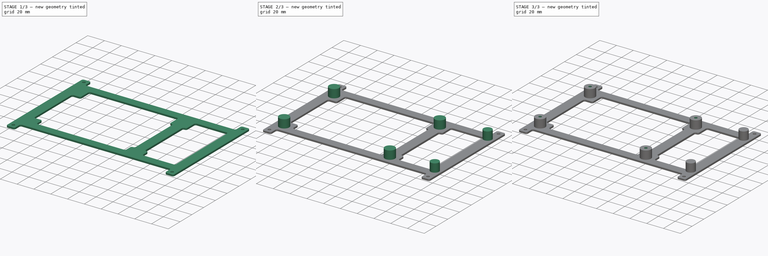
[diagram: build sequence overview — one tinted view per stage of 3, left to right]
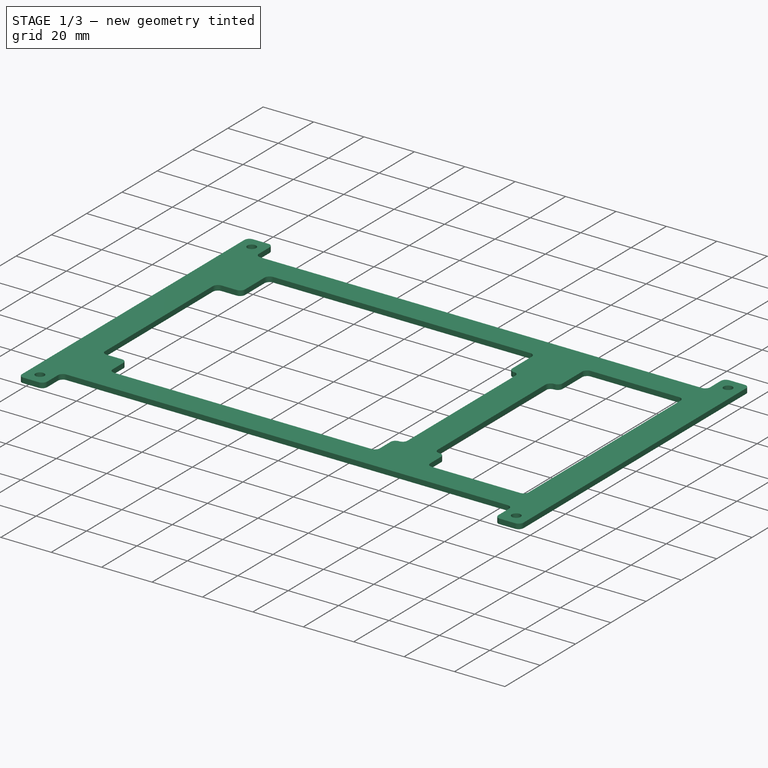
[diagram: stage 1 of 3 — iso view after this stage's code; geometry added in this stage tinted green]
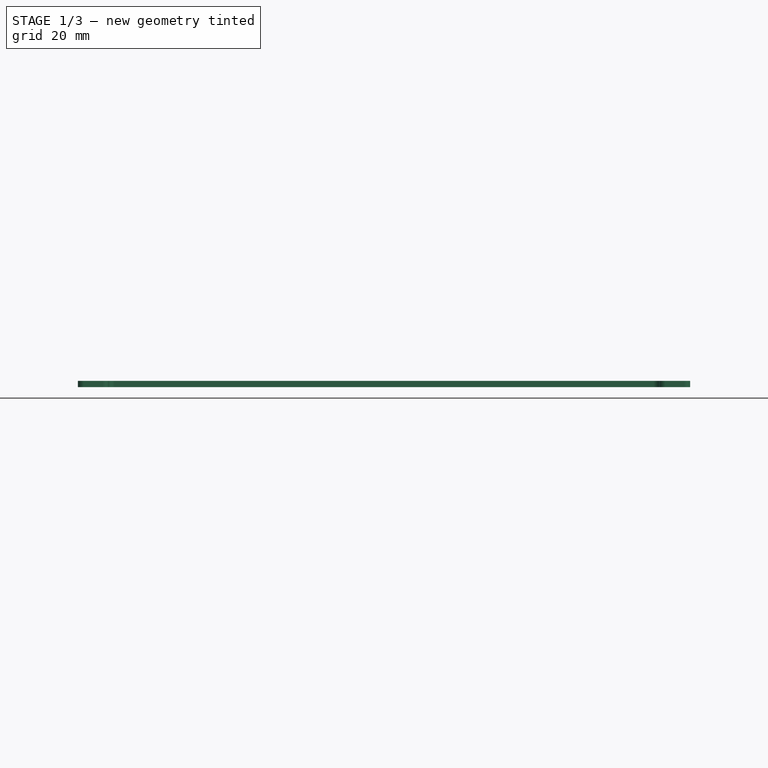
[diagram: stage 1 of 3 — front view after this stage's code; geometry added in this stage tinted green]
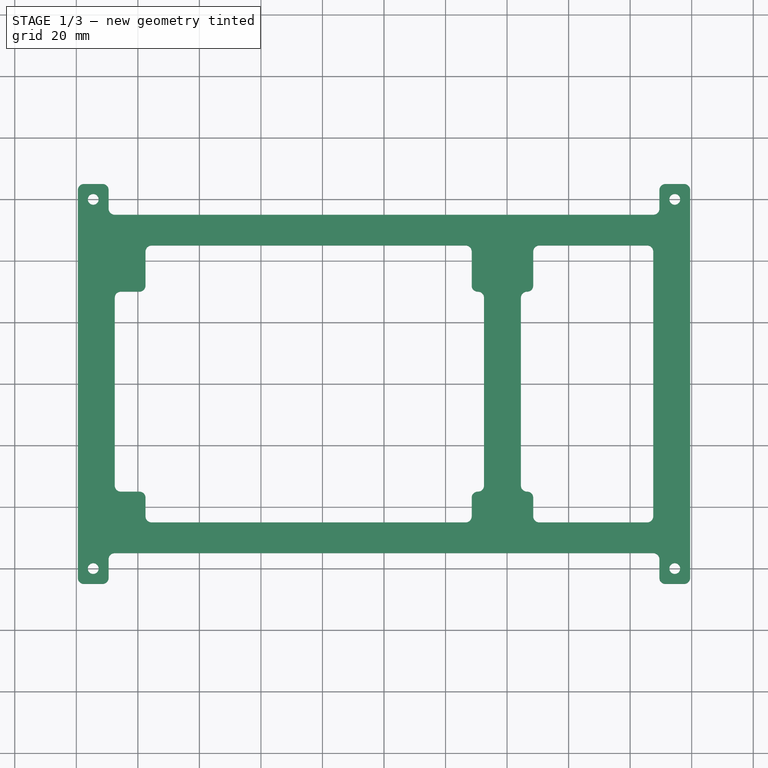
[diagram: stage 1 of 3 — top view after this stage's code; geometry added in this stage tinted green]
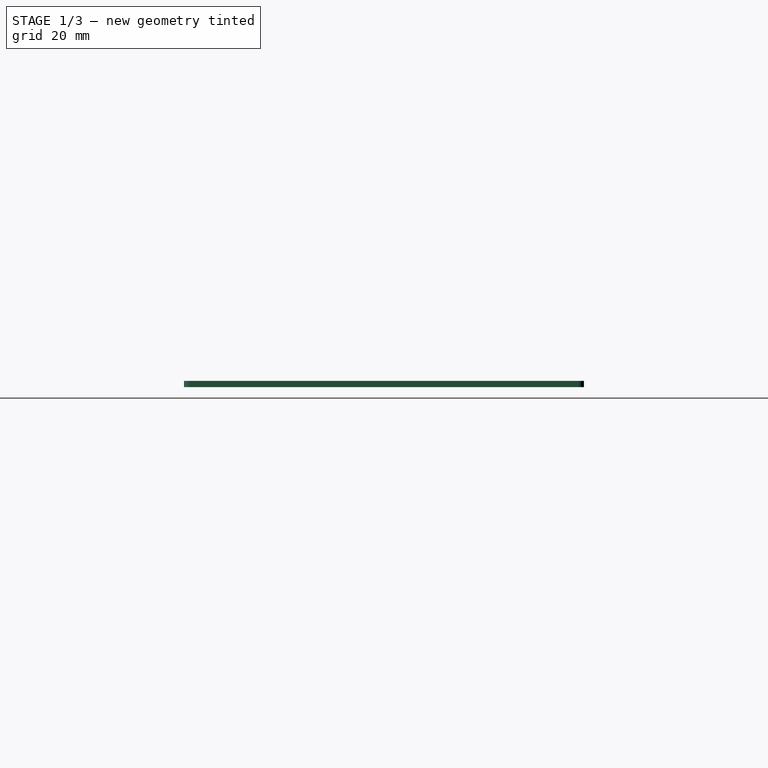
[diagram: stage 1 of 3 — right view after this stage's code; geometry added in this stage tinted green]
FCSTD DOCUMENT  (FreeCAD 0.20R29177 (Git))
Label: PS_Mounting-Frame
License: Creative Commons Attribution
LicenseURL: http://creativecommons.org/licenses/by/4.0/
objects: Sketcher::SketchObject×5, PartDesign::Pad×3, PartDesign::Fillet×1, PartDesign::Hole×1, PartDesign::Body×1
note: 16 computed .brp shape members not serialized (recipe doc carries the construction recipe); baked Part::Feature solids carry a one-line shape summary decoded from their .brp

FEATURE [Sketcher::SketchObject] Sketch  label="MasterSketch"
  FullyConstrained = true
  MapMode = 5
  Support = -> [XY_Plane]
  sketch-geometry (9):
    g0: LineSegment StartX=99.5 StartY=-55 StartZ=0 EndX=99.5 EndY=55 EndZ=0
    g1: LineSegment StartX=99.5 StartY=55 StartZ=0 EndX=-99.5 EndY=55 EndZ=0
    g2: LineSegment StartX=-99.5 StartY=55 StartZ=0 EndX=-99.5 EndY=-55 EndZ=0
    g3: LineSegment StartX=-99.5 StartY=-55 StartZ=0 EndX=99.5 EndY=-55 EndZ=0
    g4: GeomPoint X=0 Y=0 Z=0
    g5: Circle CenterX=-87.5 CenterY=40 CenterZ=0 NormalX=0 NormalY=0 NormalZ=1 AngleXU=0 Radius=1.25
    g6: Circle CenterX=-87.5 CenterY=-45 CenterZ=0 NormalX=0 NormalY=0 NormalZ=1 AngleXU=0 Radius=1.25
    g7: Circle CenterX=38.5 CenterY=-45 CenterZ=0 NormalX=0 NormalY=0 NormalZ=1 AngleXU=0 Radius=1.25
    g8: Circle CenterX=38.5 CenterY=40 CenterZ=0 NormalX=0 NormalY=0 NormalZ=1 AngleXU=0 Radius=1.25
  constraints (24):
    c: Coincident(g0,g1)
    c: Coincident(g1,g2)
    c: Coincident(g2,g3)
    c: Coincident(g3,g0)
    c: Horizontal(g1)
    c: Horizontal(g3)
    c: Vertical(g0)
    c: Vertical(g2)
    c: Symmetric(g1,g0,g4)
    c: Coincident(g4,g-1)
    c: DistanceY(g2,g2) = 110
    c: DistanceX(g1,g1) = 199
    c: DistanceY(g6,g5) = 85
    c: DistanceX(g5,g8) = 126
    c: Vertical(g6,g5)
    c: Vertical(g8,g7)
    c: Horizontal(g8,g5)
    c: Horizontal(g7,g6)
    c: DistanceY(g-1,g8) = 40
    c: DistanceX(g4,g8) = 38.5
    c: Equal(g5,g8)
    c: Equal(g8,g7)
    c: Equal(g7,g6)
    c: Diameter(g7) = 2.5
FEATURE [Sketcher::SketchObject] Sketch001
  ExternalGeometry = -> [Sketch]
  FullyConstrained = true
  MapMode = 5
  Support = -> [XY_Plane]
  sketch-geometry (51):
    g0: LineSegment StartX=-77.5 StartY=45 StartZ=0 EndX=28.5 EndY=45 EndZ=0
    g1: LineSegment StartX=28.5 StartY=45 StartZ=0 EndX=28.5 EndY=30 EndZ=0
    g2: LineSegment StartX=28.5 StartY=-45 StartZ=0 EndX=-77.5 EndY=-45 EndZ=0
    g3: LineSegment StartX=-77.5 StartY=-45 StartZ=0 EndX=-77.5 EndY=-35 EndZ=0
    g4: LineSegment StartX=48.5 StartY=45 StartZ=0 EndX=87.5 EndY=45 EndZ=0
    g5: LineSegment StartX=87.5 StartY=45 StartZ=0 EndX=87.5 EndY=-45 EndZ=0
    g6: LineSegment StartX=87.5 StartY=-45 StartZ=0 EndX=48.5 EndY=-45 EndZ=0
    g7: LineSegment StartX=48.5 StartY=-45 StartZ=0 EndX=48.5 EndY=-35 EndZ=0
    g8: LineSegment StartX=-99.5 StartY=65 StartZ=0 EndX=-89.5 EndY=65 EndZ=0
    g9: LineSegment StartX=-89.5 StartY=65 StartZ=0 EndX=-89.5 EndY=55 EndZ=0
    g10: LineSegment StartX=-89.5 StartY=55 StartZ=0 EndX=89.5 EndY=55 EndZ=0
    g11: LineSegment StartX=89.5 StartY=55 StartZ=0 EndX=89.5 EndY=65 EndZ=0
    g12: LineSegment StartX=89.5 StartY=65 StartZ=0 EndX=99.5 EndY=65 EndZ=0
    g13: LineSegment StartX=99.5 StartY=65 StartZ=0 EndX=99.5 EndY=-65 EndZ=0
    g14: LineSegment StartX=99.5 StartY=-65 StartZ=0 EndX=89.5 EndY=-65 EndZ=0
    g15: LineSegment StartX=89.5 StartY=-65 StartZ=0 EndX=89.5 EndY=-55 EndZ=0
    g16: LineSegment StartX=89.5 StartY=-55 StartZ=0 EndX=-89.5 EndY=-55 EndZ=0
    g17: LineSegment StartX=-89.5 StartY=-55 StartZ=0 EndX=-89.5 EndY=-65 EndZ=0
    g18: LineSegment StartX=-89.5 StartY=-65 StartZ=0 EndX=-99.5 EndY=-65 EndZ=0
    g19: LineSegment StartX=-99.5 StartY=-65 StartZ=0 EndX=-99.5 EndY=65 EndZ=0
    g20: Circle CenterX=-87.5 CenterY=40 CenterZ=0 NormalX=0 NormalY=0 NormalZ=1 AngleXU=0 Radius=10
    g21: Circle CenterX=38.5 CenterY=40 CenterZ=0 NormalX=0 NormalY=0 NormalZ=1 AngleXU=0 Radius=10
    g22: Circle CenterX=38.5 CenterY=-45 CenterZ=0 NormalX=0 NormalY=0 NormalZ=1 AngleXU=0 Radius=10
    g23: Circle CenterX=-87.5 CenterY=-45 CenterZ=0 NormalX=0 NormalY=0 NormalZ=1 AngleXU=0 Radius=10
    g24: LineSegment StartX=-77.5 StartY=30 StartZ=0 EndX=-87.5 EndY=30 EndZ=0
    g25: LineSegment StartX=-87.5 StartY=30 StartZ=0 EndX=-87.5 EndY=-35 EndZ=0
    g26: LineSegment StartX=-87.5 StartY=-35 StartZ=0 EndX=-77.5 EndY=-35 EndZ=0
    g27: LineSegment StartX=-77.5 StartY=30 StartZ=0 EndX=-77.5 EndY=45 EndZ=0
    g28: LineSegment StartX=28.5 StartY=30 StartZ=0 EndX=32.5 EndY=30 EndZ=0
    g29: LineSegment StartX=28.5 StartY=-35 StartZ=0 EndX=32.5 EndY=-35 EndZ=0
    g30: LineSegment StartX=28.5 StartY=-35 StartZ=0 EndX=28.5 EndY=-45 EndZ=0
    g31: LineSegment StartX=48.5 StartY=30 StartZ=0 EndX=48.5 EndY=45 EndZ=0
    g32: LineSegment StartX=-77.5 StartY=-45 StartZ=0 EndX=-77.5 EndY=-55 EndZ=0
    g33: LineSegment StartX=-77.5 StartY=45 StartZ=0 EndX=-77.5 EndY=55 EndZ=0
    g34: LineSegment StartX=-87.5 StartY=-35 StartZ=0 EndX=-99.5 EndY=-35 EndZ=0
    g35: LineSegment StartX=87.5 StartY=-45 StartZ=0 EndX=99.5 EndY=-45 EndZ=0
    g36: LineSegment StartX=94.5 StartY=-60 StartZ=0 EndX=94.5 EndY=60 EndZ=0
    g37: LineSegment StartX=94.5 StartY=60 StartZ=0 EndX=-94.5 EndY=60 EndZ=0
    g38: LineSegment StartX=-94.5 StartY=60 StartZ=0 EndX=-94.5 EndY=-60 EndZ=0
    g39: LineSegment StartX=-94.5 StartY=-60 StartZ=0 EndX=94.5 EndY=-60 EndZ=0
    g40: GeomPoint X=0 Y=0 Z=0
    g41: Circle CenterX=-94.5 CenterY=60 CenterZ=0 NormalX=0 NormalY=0 NormalZ=1 AngleXU=0 Radius=1.75
    g42: Circle CenterX=94.5 CenterY=60 CenterZ=0 NormalX=0 NormalY=0 NormalZ=1 AngleXU=0 Radius=1.75
    g43: Circle CenterX=-94.5 CenterY=-60 CenterZ=0 NormalX=0 NormalY=0 NormalZ=1 AngleXU=0 Radius=1.75
    g44: Circle CenterX=94.5 CenterY=-60 CenterZ=0 NormalX=0 NormalY=0 NormalZ=1 AngleXU=0 Radius=1.75
    g45: LineSegment StartX=32.5 StartY=30 StartZ=0 EndX=32.5 EndY=-35 EndZ=0
    g46: LineSegment StartX=44.5 StartY=30 StartZ=0 EndX=44.5 EndY=-35 EndZ=0
    g47: LineSegment StartX=44.5 StartY=30 StartZ=0 EndX=48.5 EndY=30 EndZ=0
    g48: LineSegment StartX=44.5 StartY=-35 StartZ=0 EndX=48.5 EndY=-35 EndZ=0
    g49: LineSegment StartX=32.5 StartY=-35 StartZ=0 EndX=44.5 EndY=-35 EndZ=0
    g50: LineSegment StartX=32.5 StartY=30 StartZ=0 EndX=44.5 EndY=30 EndZ=0
  constraints (137):
    c: Coincident(g0,g1)
    c: Coincident(g30,g2)
    c: Coincident(g2,g3)
    c: Coincident(g27,g0)
    c: Horizontal(g0)
    c: Horizontal(g2)
    c: Vertical(g1)
    c: Vertical(g3)
    c: Coincident(g4,g5)
    c: Coincident(g5,g6)
    c: Coincident(g6,g7)
    c: Coincident(g31,g4)
    c: Horizontal(g4)
    c: Horizontal(g6)
    c: Vertical(g5)
    c: Vertical(g7)
    c: Horizontal(g30,g6)
    c: Horizontal(g0,g4)
    c: Horizontal(g8)
    c: Coincident(g8,g9)
    c: Coincident(g9,g10)
    c: Horizontal(g10)
    c: Coincident(g10,g11)
    c: Vertical(g11)
    c: Coincident(g11,g12)
    c: Horizontal(g12)
    c: Coincident(g12,g13)
    c: Vertical(g13)
    c: Coincident(g13,g14)
    c: Horizontal(g14)
    c: Coincident(g14,g15)
    c: Vertical(g15)
    c: Coincident(g15,g16)
    c: Horizontal(g16)
    c: Coincident(g16,g17)
    c: Vertical(g17)
    c: Coincident(g17,g18)
    c: Horizontal(g18)
    c: Coincident(g18,g19)
    c: Coincident(g19,g8)
    c: Vertical(g19)
    c: Vertical(g9)
    c: Equal(g8,g12)
    c: Equal(g12,g14)
    c: Equal(g9,g17)
    c: Symmetric(g16,g9,g-1)
    c: Symmetric(g18,g13,g-2)
    c: PointOnObject(g-3,g19)
    c: Horizontal(g9,g-3)
    c: DistanceX(g8,g8) = 10
    c: DistanceY(g9,g8) = 10
    c: Horizontal(g8,g11)
    c: Coincident(g20,g-4)
    c: Coincident(g21,g-6)
    c: Coincident(g22,g-7)
    c: Coincident(g23,g-5)
    c: Equal(g20,g21)
    c: Equal(g21,g22)
    c: Equal(g22,g23)
    c: Diameter(g22) = 20
    c: Tangent(g20,g3)
    c: Tangent(g1,g21)
    c: Horizontal(g24)
    c: Coincident(g24,g25)
    c: Vertical(g25)
    c: Coincident(g25,g26)
    c: Horizontal(g26)
    c: Coincident(g3,g26)
    c: Coincident(g27,g24)
    c: Tangent(g24,g20)
    c: Tangent(g26,g23)
    c: Vertical(g27)
    c: Tangent(g27,g20)
    c: Vertical(g20,g24)
    c: Horizontal(g22,g30)
    c: Horizontal(g28)
    c: Horizontal(g29)
    c: Coincident(g1,g28)
    c: Coincident(g30,g29)
    c: Coincident(g7,g48)
    c: Coincident(g31,g47)
    c: Vertical(g31)
    c: Tangent(g30,g22)
    c: Tangent(g7,g22)
    c: Tangent(g31,g21)
    c: Vertical(g30)
    c: Coincident(g32,g2)
    c: PointOnObject(g32,g16)
    c: Tangent(g32,g23)
    c: Coincident(g33,g0)
    c: PointOnObject(g33,g10)
    c: Vertical(g33)
    c: Equal(g33,g32)
    c: Coincident(g34,g25)
    c: PointOnObject(g34,g19)
    c: Horizontal(g34)
    c: Coincident(g35,g5)
    c: PointOnObject(g35,g13)
    c: Horizontal(g35)
    c: Equal(g34,g35)
    c: Coincident(g36,g37)
    c: Coincident(g37,g38)
    c: Coincident(g38,g39)
    c: Coincident(g39,g36)
    c: Horizontal(g37)
    c: Horizontal(g39)
    c: Vertical(g36)
    c: Vertical(g38)
    c: Symmetric(g37,g36,g40)
    c: Coincident(g40,g-1)
    c: Symmetric(g-3,g8,g37)
    c: Coincident(g41,g37)
    c: Coincident(g42,g36)
    c: Coincident(g43,g38)
    c: Coincident(g44,g36)
    c: Equal(g41,g42)
    c: Equal(g42,g44)
    c: Equal(g44,g43)
    c: Diameter(g44) = 3.5
    c: Vertical(g45)
    c: Vertical(g46)
    c: Coincident(g47,g46)
    c: Coincident(g28,g45)
    c: Coincident(g48,g46)
    c: Coincident(g29,g45)
    c: Coincident(g49,g29)
    c: Coincident(g49,g46)
    c: Horizontal(g49)
    c: Tangent(g49,g22)
    c: Coincident(g50,g28)
    c: Coincident(g50,g46)
    c: Horizontal(g50)
    c: Tangent(g50,g21)
    c: Equal(g47,g28)
    c: Equal(g50,g35)
    c: Horizontal(g47)
    c: Horizontal(g48)
FEATURE [PartDesign::Pad] Pad
  Direction = (0,0,1)
  Length = 2
  Length2 = 10
  Profile = -> Sketch001
  ReferenceAxis = -> Sketch001 [N_Axis]
  Type = 0
FEATURE [PartDesign::Fillet] Fillet
  Base = -> Pad [Edge29,Edge32,Edge26,Edge74,Edge77,Edge80,Edge37,Edge38,Edge5,Edge2,Edge1,Edge41,Edge44,Edge47,Edge50,Edge53,Edge8,Edge11,Edge14,Edge17,Edge20,Edge23,Edge56,Edge59,Edge62,Edge65,Edge68,Edge92,Edge89,Edge86,Edge83,Edge73]
  BaseFeature = -> Pad
  Radius = 1.98
  SupportTransform = false
  UseAllEdges = false
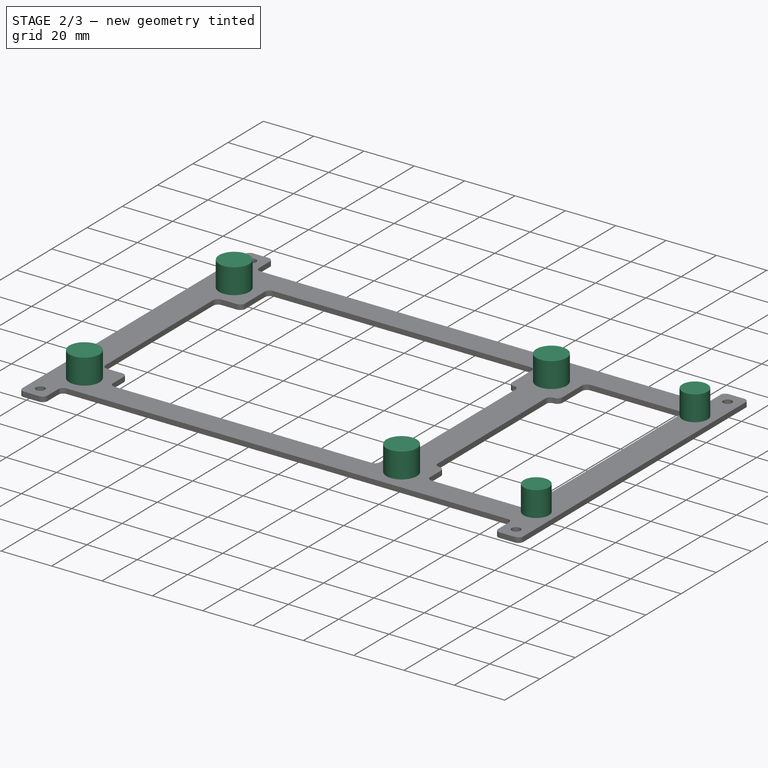
[diagram: stage 2 of 3 — iso view after this stage's code; geometry added in this stage tinted green]
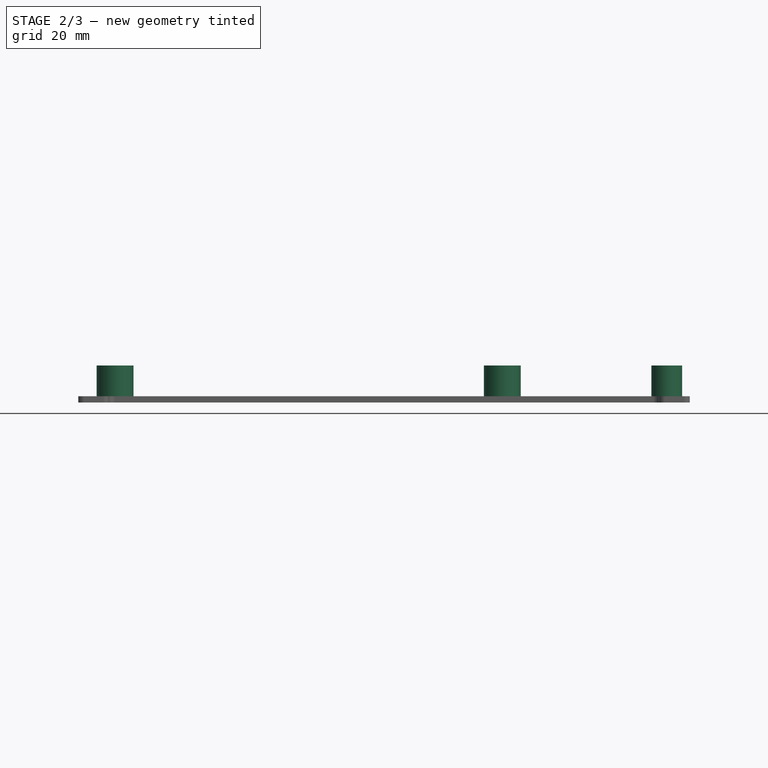
[diagram: stage 2 of 3 — front view after this stage's code; geometry added in this stage tinted green]
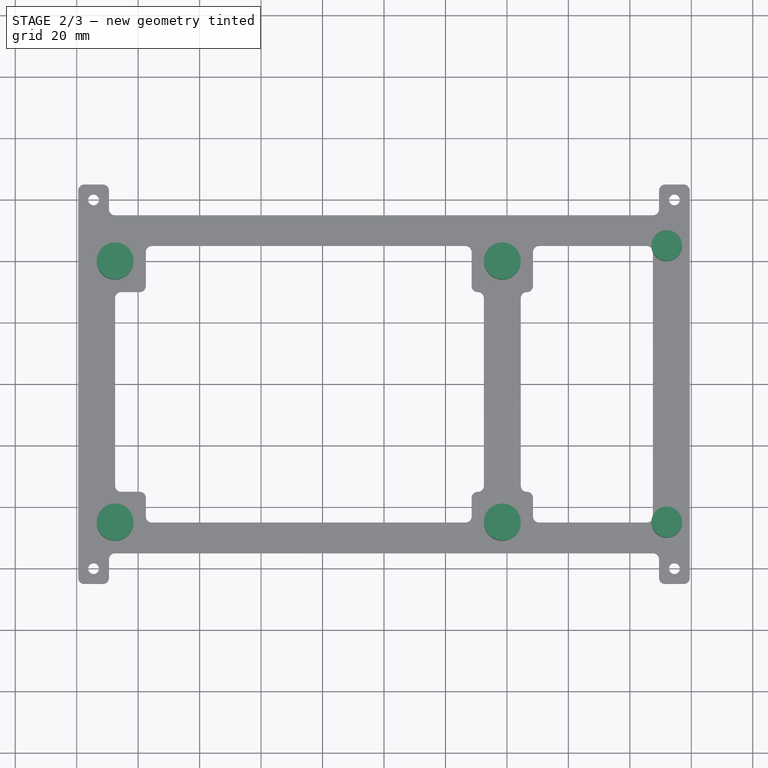
[diagram: stage 2 of 3 — top view after this stage's code; geometry added in this stage tinted green]
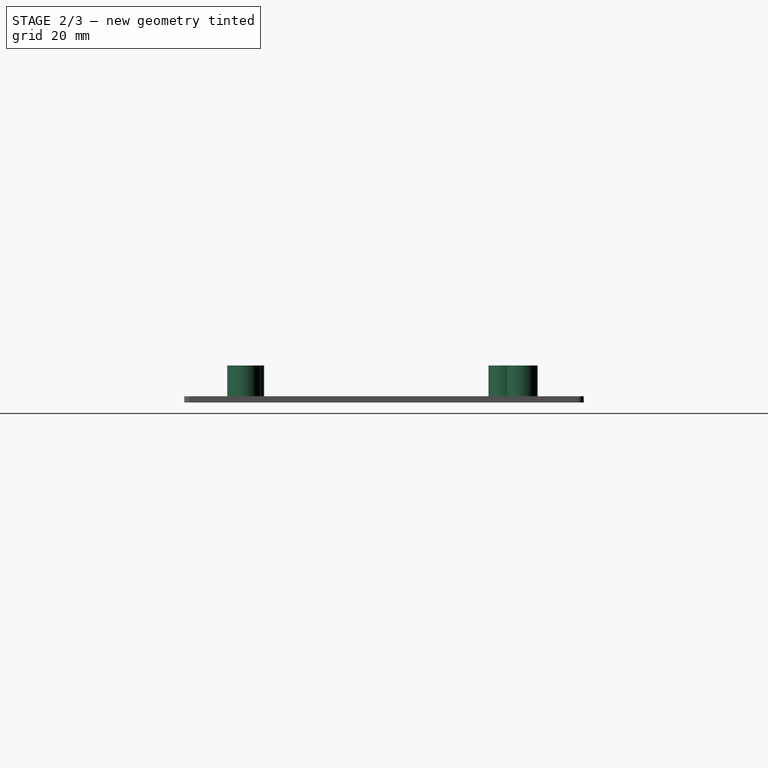
[diagram: stage 2 of 3 — right view after this stage's code; geometry added in this stage tinted green]
FEATURE [Sketcher::SketchObject] Sketch002
  AttachmentOffset = pos=(0,0,2) rot=(0,0,1;0rad)
  ExternalGeometry = -> [Sketch]
  FullyConstrained = true
  MapMode = 5
  Placement = pos=(0,0,2) rot=(0,0,1;0rad)
  Support = -> [XY_Plane]
  expr: .AttachmentOffset.Base.z = Pad.Length
  sketch-geometry (6):
    g0: Circle CenterX=-87.5 CenterY=40 CenterZ=0 NormalX=0 NormalY=0 NormalZ=1 AngleXU=0 Radius=6
    g1: Circle CenterX=38.5 CenterY=40 CenterZ=0 NormalX=0 NormalY=0 NormalZ=1 AngleXU=0 Radius=6
    g2: Circle CenterX=38.5 CenterY=-45 CenterZ=0 NormalX=0 NormalY=0 NormalZ=1 AngleXU=0 Radius=6
    g3: Circle CenterX=-87.5 CenterY=-45 CenterZ=0 NormalX=0 NormalY=0 NormalZ=1 AngleXU=0 Radius=6
    g4: Circle CenterX=92 CenterY=-45 CenterZ=0 NormalX=0 NormalY=0 NormalZ=1 AngleXU=0 Radius=5
    g5: Circle CenterX=92 CenterY=45 CenterZ=0 NormalX=0 NormalY=0 NormalZ=1 AngleXU=0 Radius=5
  constraints (13):
    c: Coincident(g0,g-3)
    c: Coincident(g1,g-4)
    c: Coincident(g2,g-5)
    c: Coincident(g3,g-6)
    c: Equal(g0,g1)
    c: Equal(g1,g2)
    c: Equal(g2,g3)
    c: Diameter(g1) = 12
    c: Horizontal(g2,g4)
    c: DistanceX(g5,g-7) = 7.5
    c: Symmetric(g4,g5,g-1)
    c: Equal(g4,g5)
    c: Diameter(g5) = 10
FEATURE [PartDesign::Pad] Pad001
  BaseFeature = -> Fillet
  Direction = (0,0,1)
  Length = 10
  Length2 = 10
  Profile = -> Sketch002
  ReferenceAxis = -> Sketch002 [N_Axis]
  Type = 0
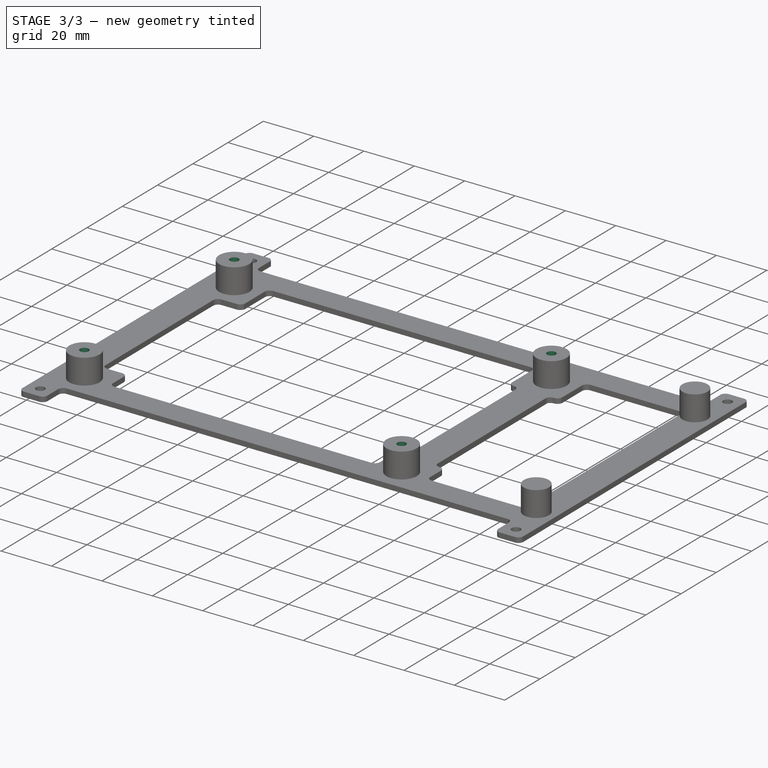
[diagram: stage 3 of 3 — iso view after this stage's code; geometry added in this stage tinted green]
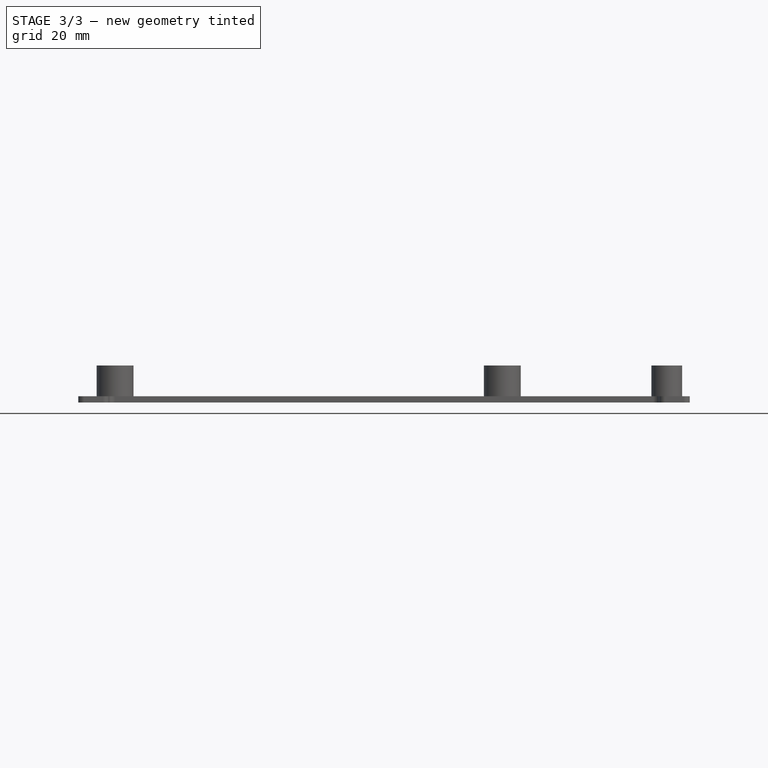
[diagram: stage 3 of 3 — front view after this stage's code; geometry added in this stage tinted green]
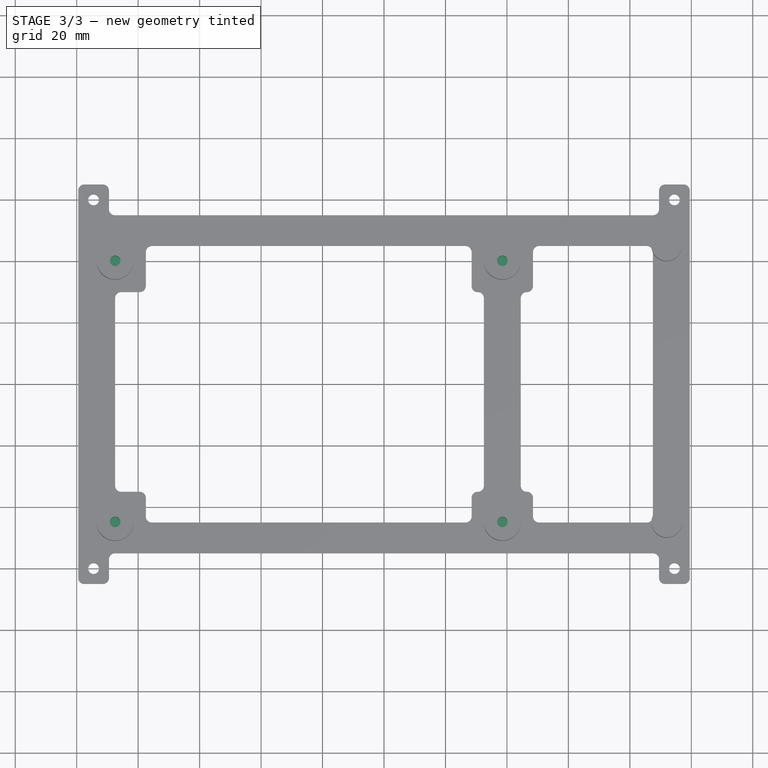
[diagram: stage 3 of 3 — top view after this stage's code; geometry added in this stage tinted green]
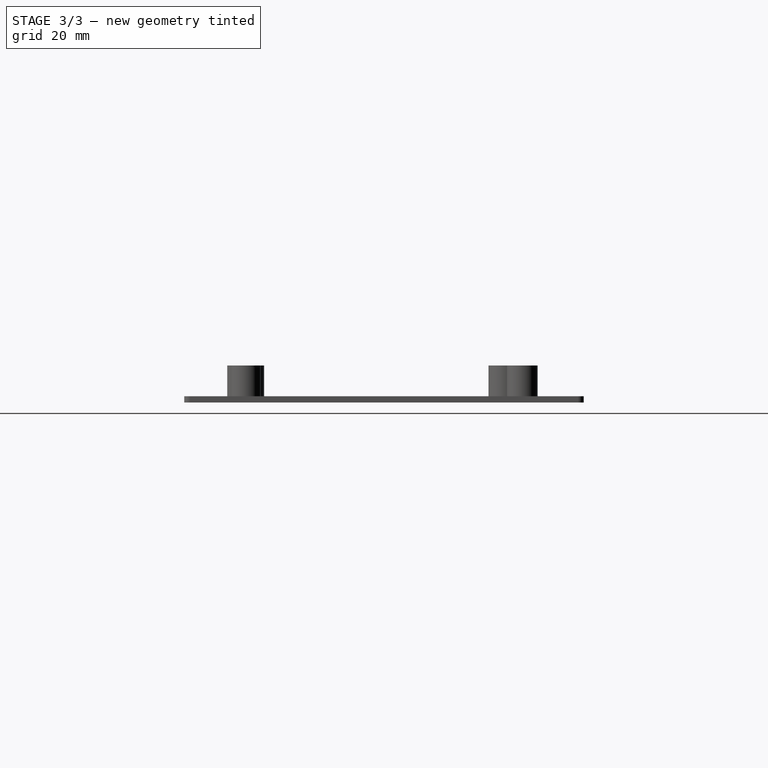
[diagram: stage 3 of 3 — right view after this stage's code; geometry added in this stage tinted green]
FEATURE [Sketcher::SketchObject] Sketch003
  ExternalGeometry = -> [Sketch]
  FullyConstrained = true
  MapMode = 5
  Support = -> [XY_Plane]
  sketch-geometry (4):
    g0: Circle CenterX=-87.5 CenterY=40 CenterZ=0 NormalX=0 NormalY=0 NormalZ=1 AngleXU=0 Radius=1.7
    g1: Circle CenterX=38.5 CenterY=40 CenterZ=0 NormalX=0 NormalY=0 NormalZ=1 AngleXU=0 Radius=1.7
    g2: Circle CenterX=38.5 CenterY=-45 CenterZ=0 NormalX=0 NormalY=0 NormalZ=1 AngleXU=0 Radius=1.7
    g3: Circle CenterX=-87.5 CenterY=-45 CenterZ=0 NormalX=0 NormalY=0 NormalZ=1 AngleXU=0 Radius=1.7
  constraints (8):
    c: Coincident(g0,g-3)
    c: Coincident(g1,g-4)
    c: Coincident(g2,g-5)
    c: Coincident(g3,g-6)
    c: Equal(g0,g1)
    c: Equal(g1,g2)
    c: Equal(g2,g3)
    c: Diameter(g1) = 3.4
FEATURE [PartDesign::Hole] Hole
  BaseFeature = -> Pad001
  CustomThreadClearance = 0
  Depth = 480.764
  DepthType = 1
  Diameter = 3.4
  DrillForDepth = false
  DrillPoint = 1
  DrillPointAngle = 118
  HoleCutCountersinkAngle = 90
  HoleCutCustomValues = false
  HoleCutDepth = 3.4
  HoleCutDiameter = 6.1
  HoleCutType = 1
  ModelThread = false
  Profile = -> Sketch003
  Reversed = true
  Tapered = false
  TaperedAngle = 90
  ThreadClass = 0
  ThreadDepth = 480.764
  ThreadDepthType = 0
  ThreadDirection = 0
  ThreadFit = 0
  ThreadSize = 9
  ThreadType = 1
  Threaded = false
  UseCustomThreadClearance = false
FEATURE [Sketcher::SketchObject] Sketch004
  AttachmentOffset = pos=(0,0,3.4) rot=(0,0,1;0rad)
  ExternalGeometry = -> [Sketch]
  FullyConstrained = true
  MapMode = 5
  Placement = pos=(0,0,3.4) rot=(0,0,1;0rad)
  Support = -> [XY_Plane]
  sketch-geometry (4):
    g0: Circle CenterX=-87.5 CenterY=40 CenterZ=0 NormalX=0 NormalY=0 NormalZ=1 AngleXU=0 Radius=1.7
    g1: Circle CenterX=38.5 CenterY=40 CenterZ=0 NormalX=0 NormalY=0 NormalZ=1 AngleXU=0 Radius=1.7
    g2: Circle CenterX=38.5 CenterY=-45 CenterZ=0 NormalX=0 NormalY=0 NormalZ=1 AngleXU=0 Radius=1.7
    g3: Circle CenterX=-87.5 CenterY=-45 CenterZ=0 NormalX=0 NormalY=0 NormalZ=1 AngleXU=0 Radius=1.7
  constraints (8):
    c: Coincident(g0,g-3)
    c: Coincident(g1,g-4)
    c: Coincident(g2,g-5)
    c: Coincident(g3,g-6)
    c: Equal(g0,g1)
    c: Equal(g1,g2)
    c: Equal(g2,g3)
    c: Diameter(g1) = 3.4
FEATURE [PartDesign::Pad] Pad002
  BaseFeature = -> Hole
  Direction = (0,0,1)
  Length = 0.2
  Length2 = 10
  Profile = -> Sketch004
  ReferenceAxis = -> Sketch004 [N_Axis]
  Type = 0
FEATURE [PartDesign::Body] Body  label="PS_Mounting-Frame"
  Group = -> [Sketch,Sketch001,Pad,Fillet,Sketch002,Pad001,Sketch003,Hole,Sketch004,Pad002]
  Origin = -> Origin
  Tip = -> Pad002
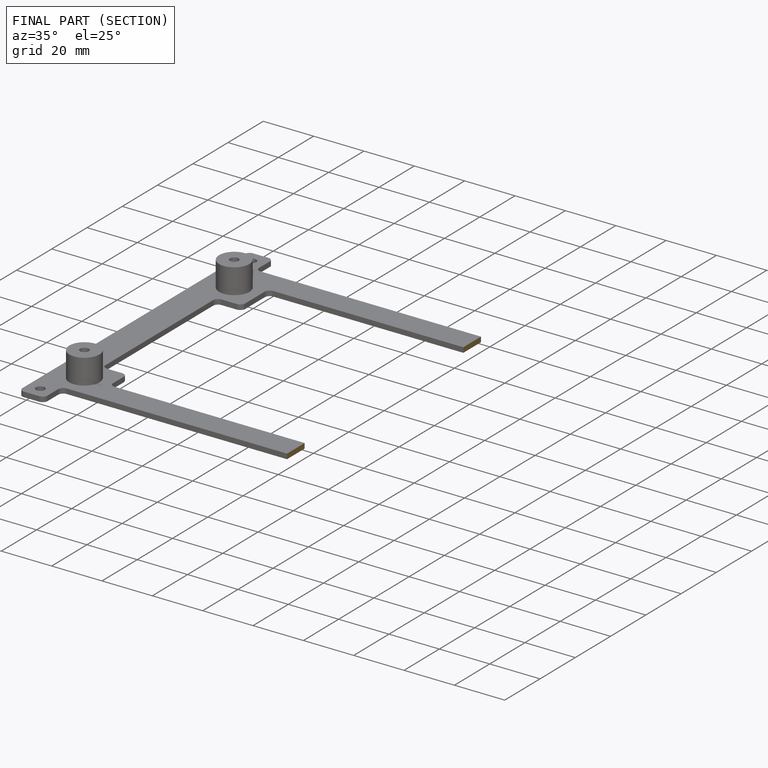
[diagram: finished part — half-section view (interior)]
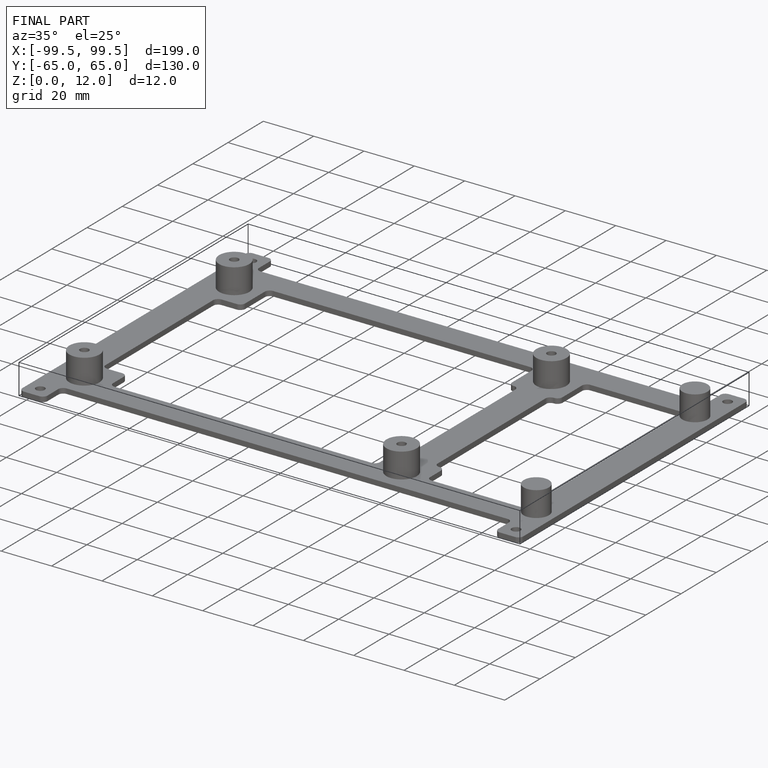
[diagram: finished part — iso view with bounding-box wireframe]
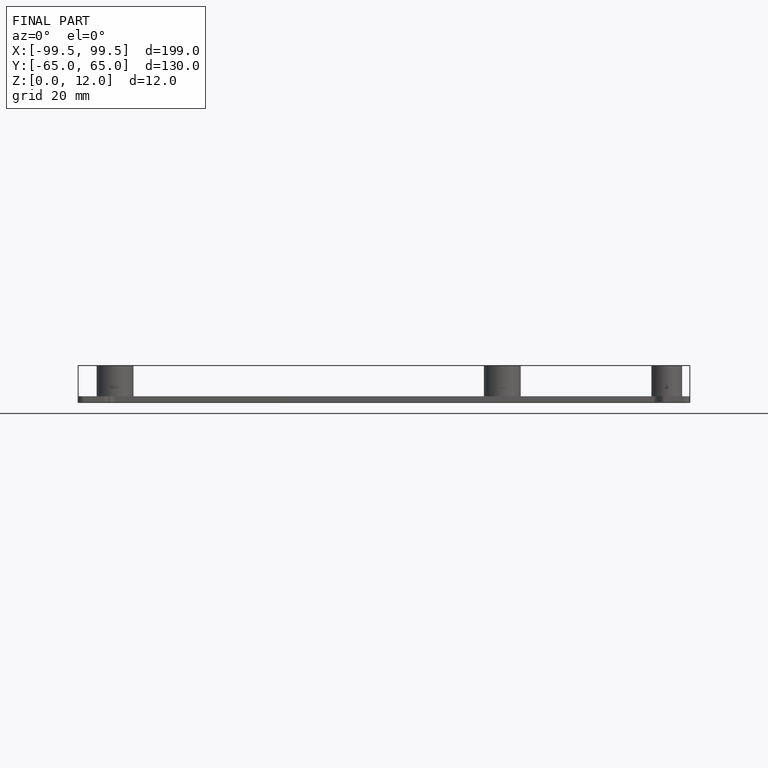
[diagram: finished part — front view with bounding-box wireframe]
